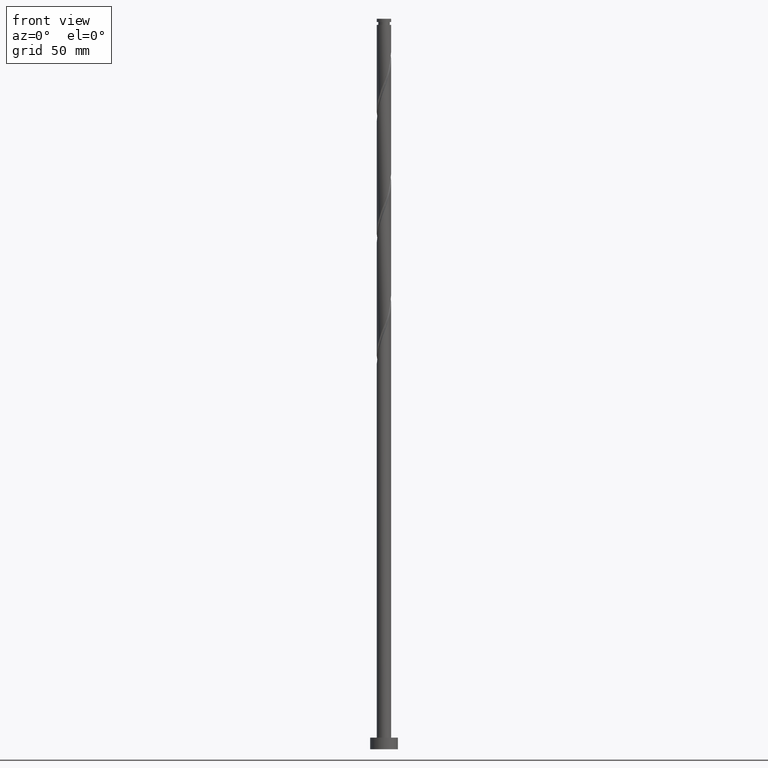
[diagram: clean part render]
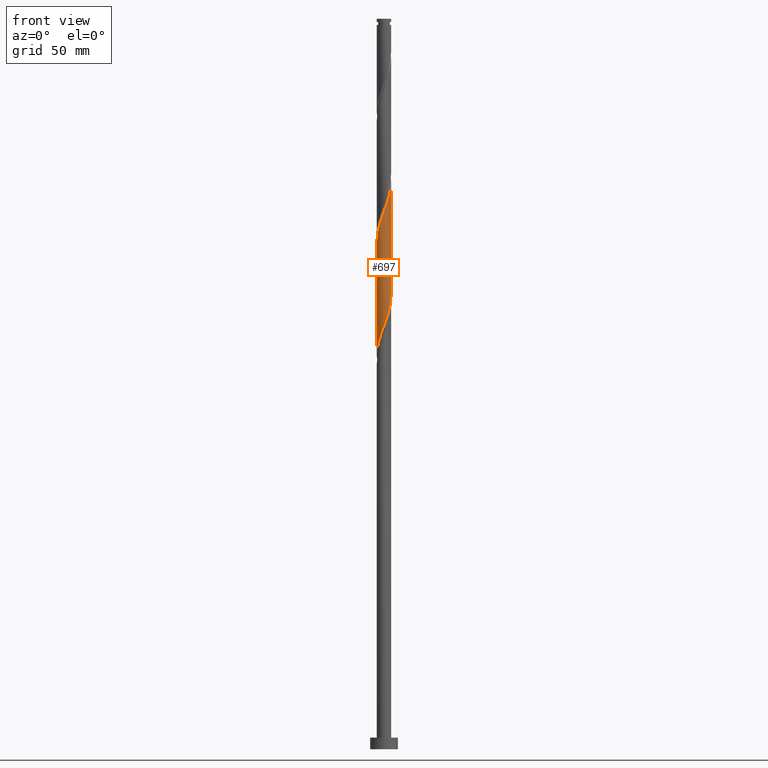
[diagram: same view with one face highlighted and labeled with its STEP entity id]
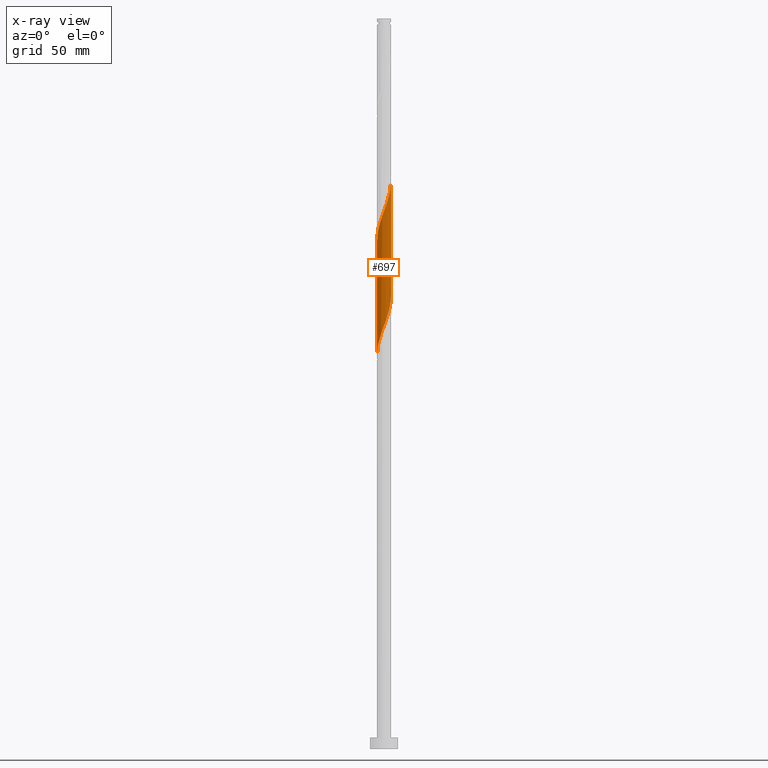
[diagram: x-ray of the same camera — body ghosted, the highlighted face saturated]
A machine part, front view. The second image highlights one B-rep face of the part: STEP entity #697.
The next image is the same camera in x-ray: the body ghosted, the highlighted face saturated — about 0% of this face is hidden behind the body in this view.
In plain terms, the highlighted cylindrical surface (edge-blend (fillet) strip) has radius 3.1 mm, axis along (-0, -0, -1).
Its self-contained STEP definition (entity closure, byte-faithful):
#20 = CARTESIAN_POINT ( 'NONE',  ( -0.6168922110061072495, -3.037999999999998924, 181.1143247266692811 ) ) ;
#45 = EDGE_CURVE ( 'NONE', #1515, #721, #605, .T. ) ;
#72 = CARTESIAN_POINT ( 'NONE',  ( 3.100000000000000089, 3.796405077356794918E-16, 315.0000000000000000 ) ) ;
#98 = DIRECTION ( 'NONE',  ( -1.000000000000000000, 0.000000000000000000, 0.000000000000000000 ) ) ;
#100 = CARTESIAN_POINT ( 'NONE',  ( 1.277444032676697150, -2.824559566264928545, 235.4893247266692811 ) ) ;
#111 = CARTESIAN_POINT ( 'NONE',  ( -0.7623381224711502924, -3.004802919831379704, 229.8643247266693095 ) ) ;
#117 = CARTESIAN_POINT ( 'NONE',  ( 2.258341651542053796, -2.152183489883519929, 189.5518247266693095 ) ) ;
#121 = CARTESIAN_POINT ( 'NONE',  ( -1.411856266192948794, -2.759830046146270366, 227.9893247266693095 ) ) ;
#130 = CARTESIAN_POINT ( 'NONE',  ( 1.722814431116905576, -2.600752049917915087, 187.6768247266693095 ) ) ;
#235 = CARTESIAN_POINT ( 'NONE',  ( 3.004802919831379704, -0.7623381224711505144, 242.9893247266692811 ) ) ;
#247 = FACE_OUTER_BOUND ( 'NONE', #432, .T. ) ;
#262 = CARTESIAN_POINT ( 'NONE',  ( -1.100898101268990015, -2.918908042374625200, 228.9268247266693095 ) ) ;
#313 = CARTESIAN_POINT ( 'NONE',  ( 2.968492940984461370, -0.9591926024226447023, 193.3018247266692811 ) ) ;
#330 = EDGE_CURVE ( 'NONE', #1855, #896, #1382, .T. ) ;
#342 = CARTESIAN_POINT ( 'NONE',  ( -3.099102428151832900, -0.07459316204186967891, 169.8643247266692811 ) ) ;
#350 = AXIS2_PLACEMENT_3D ( 'NONE', #1715, #1115, #98 ) ;
#366 = CARTESIAN_POINT ( 'NONE',  ( -2.376467769900718174, -1.990578041329479575, 175.4893247266692811 ) ) ;
#386 = CARTESIAN_POINT ( 'NONE',  ( 0.9591926024226449243, -2.968492940984465811, 234.5518247266693379 ) ) ;
#389 = CARTESIAN_POINT ( 'NONE',  ( -3.100000000000003642, -2.003785095264853602E-15, 218.8148076487632352 ) ) ;
#413 = CARTESIAN_POINT ( 'NONE',  ( -3.038000000000003364, -0.6168922110061072495, 220.4893247266692811 ) ) ;
#432 = EDGE_LOOP ( 'NONE', ( #1788, #1619, #1753, #1181 ) ) ;
#452 = CARTESIAN_POINT ( 'NONE',  ( -3.100000000000000089, 0.000000000000000000, 315.0000000000000000 ) ) ;
#482 = CARTESIAN_POINT ( 'NONE',  ( -2.918908042374620759, -1.100898101268986906, 172.6768247266693663 ) ) ;
#503 = CARTESIAN_POINT ( 'NONE',  ( -3.099999999999999645, -0.03730198121581198428, 169.7642044928004736 ) ) ;
#527 = CARTESIAN_POINT ( 'NONE',  ( 3.099102428151838673, -0.07459316204187098343, 244.8643247266692811 ) ) ;
#543 = CARTESIAN_POINT ( 'NONE',  ( 2.376467769900719951, -1.990578041329483794, 239.2393247266693095 ) ) ;
#575 = CARTESIAN_POINT ( 'NONE',  ( 0.7623381224711479609, -3.004802919831374819, 184.8643247266693663 ) ) ;
#601 = CARTESIAN_POINT ( 'NONE',  ( -1.277444032676696040, -2.824559566264924992, 179.2393247266692811 ) ) ;
#605 = LINE ( 'NONE', #452, #765 ) ;
#655 = CARTESIAN_POINT ( 'NONE',  ( -0.4237781436733111806, -3.090697797288135540, 230.8018247266693095 ) ) ;
#668 = CARTESIAN_POINT ( 'NONE',  ( -1.990578041329483794, -2.376467769900719951, 226.1143247266692811 ) ) ;
#677 = CARTESIAN_POINT ( 'NONE',  ( 1.411856266192945908, -2.759830046146267701, 186.7393247266693095 ) ) ;
#680 = CARTESIAN_POINT ( 'NONE',  ( 0.2745918195895695191, -3.107507059015540918, 232.6768247266693095 ) ) ;
#684 = CARTESIAN_POINT ( 'NONE',  ( 1.100898101268986906, -2.918908042374620759, 185.8018247266693379 ) ) ;
#697 = ADVANCED_FACE ( 'NONE', ( #247 ), #811, .T. ) ;
#721 = VERTEX_POINT ( 'NONE', #1287 ) ;
#765 = VECTOR ( 'NONE', #1214, 1000.000000000000000 ) ;
#807 = CARTESIAN_POINT ( 'NONE',  ( 3.090697797288134652, -0.4237781436733112916, 243.9268247266693379 ) ) ;
#811 = CYLINDRICAL_SURFACE ( 'NONE', #350, 3.100000000000000089 ) ;
#830 = CARTESIAN_POINT ( 'NONE',  ( 2.680626191545386838, -1.595695462930748043, 191.4268247266693379 ) ) ;
#892 = CARTESIAN_POINT ( 'NONE',  ( 2.824559566264924992, -1.277444032676696484, 192.3643247266692811 ) ) ;
#894 = CARTESIAN_POINT ( 'NONE',  ( 3.100000000000004086, 1.559743332999458181E-15, 245.0648076487632636 ) ) ;
#896 = VERTEX_POINT ( 'NONE', #1061 ) ;
#966 = CARTESIAN_POINT ( 'NONE',  ( 1.873939476407135318, -2.469483921543724758, 237.3643247266692811 ) ) ;
#987 = CARTESIAN_POINT ( 'NONE',  ( 2.469483921543719873, -1.873939476407134430, 190.4893247266692811 ) ) ;
#992 = CARTESIAN_POINT ( 'NONE',  ( 2.600752049917918196, -1.722814431116909129, 240.1768247266692811 ) ) ;
#1051 =( BOUNDED_CURVE ( )  B_SPLINE_CURVE ( 2, ( #1559, #1598, #413, #1588, #1853, #1116, #1708, #1266, #668, #1415, #121, #262, #111, #655, #1100, #680, #1301, #386, #100, #1896, #966, #1276, #543, #992, #1575, #1696, #235, #807, #527, #1289, #894 ),
 .UNSPECIFIED., .F., .T. ) 
 B_SPLINE_CURVE_WITH_KNOTS ( ( 3, 2, 2, 2, 2, 2, 2, 2, 2, 2, 2, 2, 2, 2, 2, 3 ),
 ( 0.3045303401299219725, 0.3125000000000000000, 0.3214285714285713969, 0.3303571428571429047, 0.3392857142857143016, 0.3482142857142856984, 0.3571428571428570953, 0.3660714285714286031, 0.3750000000000000000, 0.3839285714285713969, 0.3928571428571429047, 0.4017857142857143016, 0.4107142857142856984, 0.4196428571428570953, 0.4285714285714286031, 0.4295303401299222501 ),
 .UNSPECIFIED. ) 
 CURVE ( )  GEOMETRIC_REPRESENTATION_ITEM ( )  RATIONAL_B_SPLINE_CURVE ( ( 0.9079949616362184006, 0.9039886423360812273, 0.9090909090909482515, 0.9033747362666230130, 0.9090909090909482515, 0.9033747362666230130, 0.9090909090909482515, 0.9033747362666230130, 0.9090909090909482515, 0.9033747362666230130, 0.9090909090909482515, 0.9033747362666230130, 0.9090909090909482515, 0.9033747362666230130, 0.9090909090909482515, 0.9033747362666230130, 0.9090909090909482515, 0.9033747362666230130, 0.9090909090909482515, 0.9033747362666230130, 0.9090909090909482515, 0.9033747362666230130, 0.9090909090909482515, 0.9033747362666230130, 0.9090909090909482515, 0.9033747362666230130, 0.9090909090909482515, 0.9033747362666230130, 0.9090909090909482515, 0.9084770030214899261, 0.9079949616362181786 ) ) 
 REPRESENTATION_ITEM ( '' )  );
#1053 = CARTESIAN_POINT ( 'NONE',  ( -0.9591926024226445913, -2.968492940984461370, 180.1768247266693663 ) ) ;
#1061 = CARTESIAN_POINT ( 'NONE',  ( 3.099999999999999201, -3.097098005716648322E-15, 195.9138418045753838 ) ) ;
#1085 = CARTESIAN_POINT ( 'NONE',  ( -3.090697797288131099, -0.4237781436733092932, 170.8018247266692811 ) ) ;
#1086 = EDGE_CURVE ( 'NONE', #1515, #1855, #1051, .T. ) ;
#1100 = CARTESIAN_POINT ( 'NONE',  ( -0.07459316204187071975, -3.099102428151837785, 231.7393247266692526 ) ) ;
#1115 = DIRECTION ( 'NONE',  ( -0.000000000000000000, -0.000000000000000000, -1.000000000000000000 ) ) ;
#1116 = CARTESIAN_POINT ( 'NONE',  ( -2.680626191545391723, -1.595695462930749153, 223.3018247266693379 ) ) ;
#1160 = CARTESIAN_POINT ( 'NONE',  ( 0.4237781436733092932, -3.090697797288130655, 183.9268247266693379 ) ) ;
#1181 = ORIENTED_EDGE ( 'NONE', *, *, #1210, .F. ) ;
#1183 = CARTESIAN_POINT ( 'NONE',  ( 0.07459316204186954014, -3.099102428151832900, 182.9893247266693095 ) ) ;
#1200 = CARTESIAN_POINT ( 'NONE',  ( 3.100000000000000977, -0.3115617227303504877, 195.0755707256118114 ) ) ;
#1210 = EDGE_CURVE ( 'NONE', #896, #721, #1386, .T. ) ;
#1214 = DIRECTION ( 'NONE',  ( -0.000000000000000000, -0.000000000000000000, -1.000000000000000000 ) ) ;
#1227 = CARTESIAN_POINT ( 'NONE',  ( -2.759830046146267701, -1.411856266192946130, 173.6143247266692811 ) ) ;
#1256 = DIRECTION ( 'NONE',  ( -0.000000000000000000, -0.000000000000000000, -1.000000000000000000 ) ) ;
#1266 = CARTESIAN_POINT ( 'NONE',  ( -2.258341651542058681, -2.152183489883522594, 225.1768247266693663 ) ) ;
#1276 = CARTESIAN_POINT ( 'NONE',  ( 2.152183489883522594, -2.258341651542058681, 238.3018247266692811 ) ) ;
#1287 = CARTESIAN_POINT ( 'NONE',  ( -3.099999999999999201, -5.869560437340105179E-15, 169.6638418045753838 ) ) ;
#1289 = CARTESIAN_POINT ( 'NONE',  ( 3.100000000000004530, -0.03730198121580244330, 244.9644449605381737 ) ) ;
#1301 = CARTESIAN_POINT ( 'NONE',  ( 0.6168922110061071384, -3.038000000000003364, 233.6143247266693095 ) ) ;
#1347 = CARTESIAN_POINT ( 'NONE',  ( -0.2745918195895704073, -3.107507059015536033, 182.0518247266693095 ) ) ;
#1382 = LINE ( 'NONE', #72, #1903 ) ;
#1386 =( BOUNDED_CURVE ( )  B_SPLINE_CURVE ( 2, ( #1805, #1200, #1642, #313, #892, #830, #987, #117, #1594, #130, #677, #684, #575, #1160, #1183, #1347, #20, #1053, #601, #1836, #1517, #1846, #366, #1822, #1227, #482, #1536, #1085, #342, #503, #1683 ),
 .UNSPECIFIED., .F., .T. ) 
 B_SPLINE_CURVE_WITH_KNOTS ( ( 3, 2, 2, 2, 2, 2, 2, 2, 2, 2, 2, 2, 2, 2, 2, 3 ),
 ( 0.8045303401299218615, 0.8125000000000000000, 0.8214285714285713969, 0.8303571428571429047, 0.8392857142857143016, 0.8482142857142856984, 0.8571428571428570953, 0.8660714285714286031, 0.8750000000000000000, 0.8839285714285713969, 0.8928571428571429047, 0.9017857142857143016, 0.9107142857142856984, 0.9196428571428570953, 0.9285714285714286031, 0.9295303401299219725 ),
 .UNSPECIFIED. ) 
 CURVE ( )  GEOMETRIC_REPRESENTATION_ITEM ( )  RATIONAL_B_SPLINE_CURVE ( ( 0.9079949616362124054, 0.9039886423360751211, 0.9090909090909421453, 0.9033747362666170178, 0.9090909090909421453, 0.9033747362666170178, 0.9090909090909421453, 0.9033747362666170178, 0.9090909090909421453, 0.9033747362666170178, 0.9090909090909421453, 0.9033747362666170178, 0.9090909090909421453, 0.9033747362666170178, 0.9090909090909421453, 0.9033747362666170178, 0.9090909090909421453, 0.9033747362666170178, 0.9090909090909421453, 0.9033747362666170178, 0.9090909090909421453, 0.9033747362666170178, 0.9090909090909421453, 0.9033747362666170178, 0.9090909090909421453, 0.9033747362666170178, 0.9090909090909421453, 0.9033747362666170178, 0.9090909090909421453, 0.9084770030214839309, 0.9079949616362122944 ) ) 
 REPRESENTATION_ITEM ( '' )  );
#1415 = CARTESIAN_POINT ( 'NONE',  ( -1.722814431116908906, -2.600752049917918196, 227.0518247266692526 ) ) ;
#1515 = VERTEX_POINT ( 'NONE', #389 ) ;
#1517 = CARTESIAN_POINT ( 'NONE',  ( -1.873939476407133764, -2.469483921543719873, 177.3643247266692811 ) ) ;
#1536 = CARTESIAN_POINT ( 'NONE',  ( -3.004802919831374819, -0.7623381224711482940, 171.7393247266693095 ) ) ;
#1559 = CARTESIAN_POINT ( 'NONE',  ( -3.100000000000003642, -2.003785095264853602E-15, 218.8148076487632352 ) ) ;
#1575 = CARTESIAN_POINT ( 'NONE',  ( 2.759830046146270810, -1.411856266192949461, 241.1143247266692811 ) ) ;
#1588 = CARTESIAN_POINT ( 'NONE',  ( -2.968492940984465811, -0.9591926024226451464, 221.4268247266692811 ) ) ;
#1594 = CARTESIAN_POINT ( 'NONE',  ( 1.990578041329479131, -2.376467769900718174, 188.6143247266692526 ) ) ;
#1598 = CARTESIAN_POINT ( 'NONE',  ( -3.100000000000004974, -0.3115617227303540959, 219.6530787277268644 ) ) ;
#1619 = ORIENTED_EDGE ( 'NONE', *, *, #1086, .F. ) ;
#1641 = CARTESIAN_POINT ( 'NONE',  ( 3.100000000000004086, 1.559743332999457984E-15, 245.0648076487632636 ) ) ;
#1642 = CARTESIAN_POINT ( 'NONE',  ( 3.037999999999998924, -0.6168922110061074715, 194.2393247266693095 ) ) ;
#1683 = CARTESIAN_POINT ( 'NONE',  ( -3.099999999999999201, -5.869560437340105179E-15, 169.6638418045753838 ) ) ;
#1696 = CARTESIAN_POINT ( 'NONE',  ( 2.918908042374625200, -1.100898101268990015, 242.0518247266692811 ) ) ;
#1708 = CARTESIAN_POINT ( 'NONE',  ( -2.469483921543724758, -1.873939476407135318, 224.2393247266692811 ) ) ;
#1715 = CARTESIAN_POINT ( 'NONE',  ( 0.000000000000000000, 0.000000000000000000, 315.0000000000000000 ) ) ;
#1753 = ORIENTED_EDGE ( 'NONE', *, *, #45, .T. ) ;
#1788 = ORIENTED_EDGE ( 'NONE', *, *, #330, .F. ) ;
#1805 = CARTESIAN_POINT ( 'NONE',  ( 3.099999999999999201, -3.097098005716648322E-15, 195.9138418045753838 ) ) ;
#1822 = CARTESIAN_POINT ( 'NONE',  ( -2.600752049917915087, -1.722814431116905576, 174.5518247266692811 ) ) ;
#1836 = CARTESIAN_POINT ( 'NONE',  ( -1.595695462930748265, -2.680626191545387282, 178.3018247266693379 ) ) ;
#1846 = CARTESIAN_POINT ( 'NONE',  ( -2.152183489883519929, -2.258341651542053796, 176.4268247266693095 ) ) ;
#1853 = CARTESIAN_POINT ( 'NONE',  ( -2.824559566264928545, -1.277444032676697150, 222.3643247266692526 ) ) ;
#1855 = VERTEX_POINT ( 'NONE', #1641 ) ;
#1896 = CARTESIAN_POINT ( 'NONE',  ( 1.595695462930749153, -2.680626191545392167, 236.4268247266693379 ) ) ;
#1903 = VECTOR ( 'NONE', #1256, 1000.000000000000000 ) ;